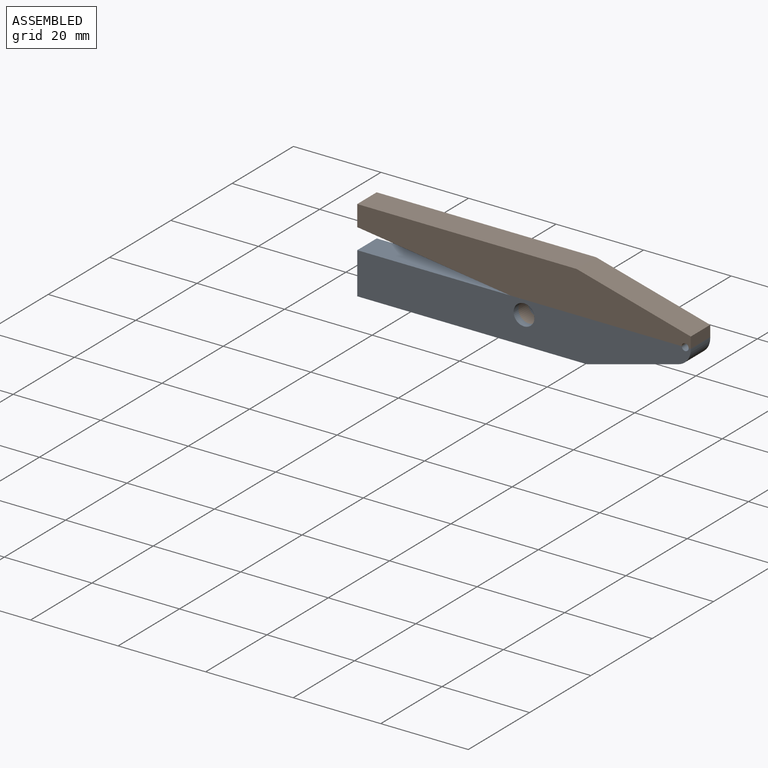
[diagram: assembled view]
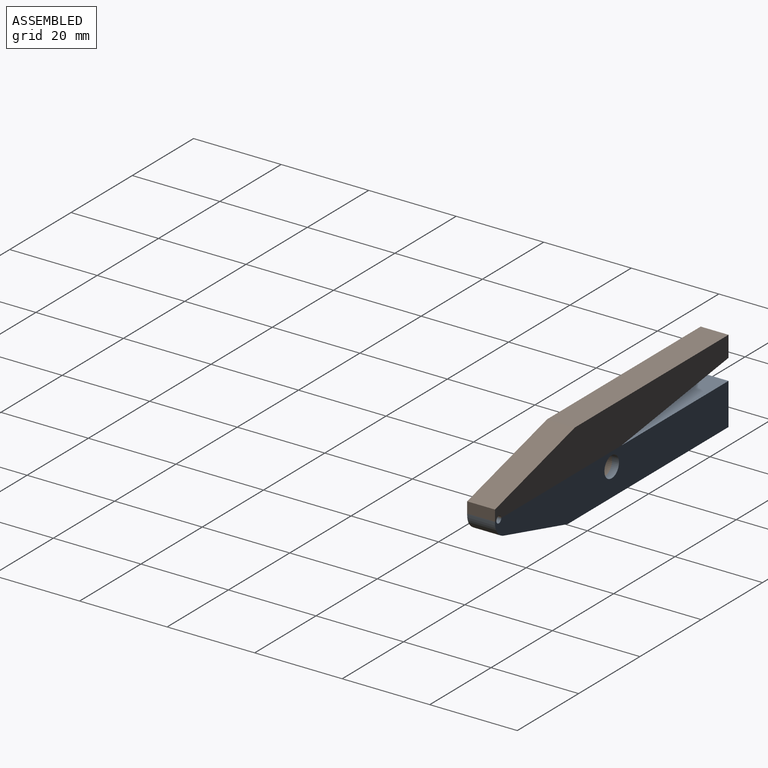
[diagram: assembled view, second angle]
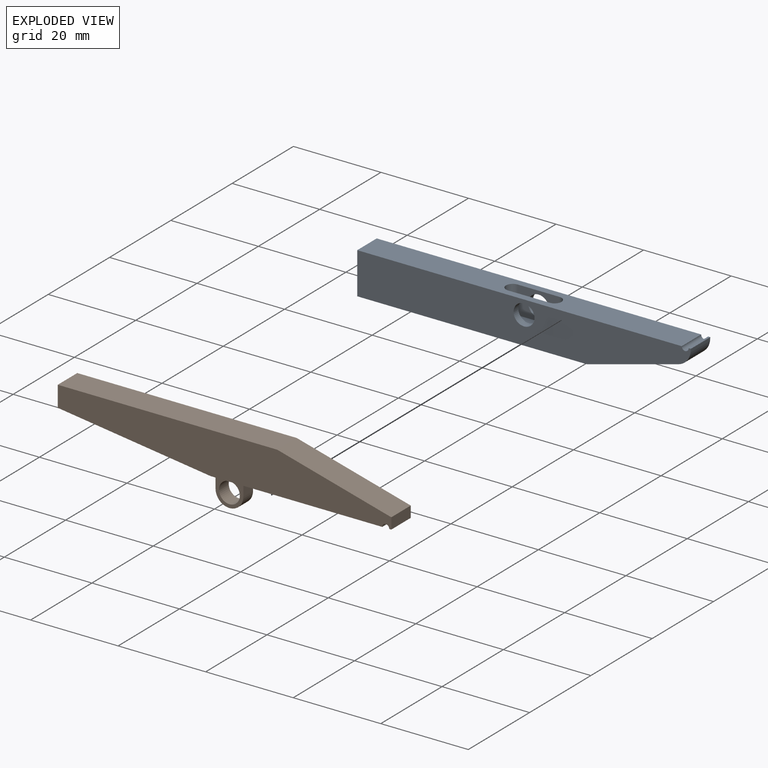
[diagram: exploded view]
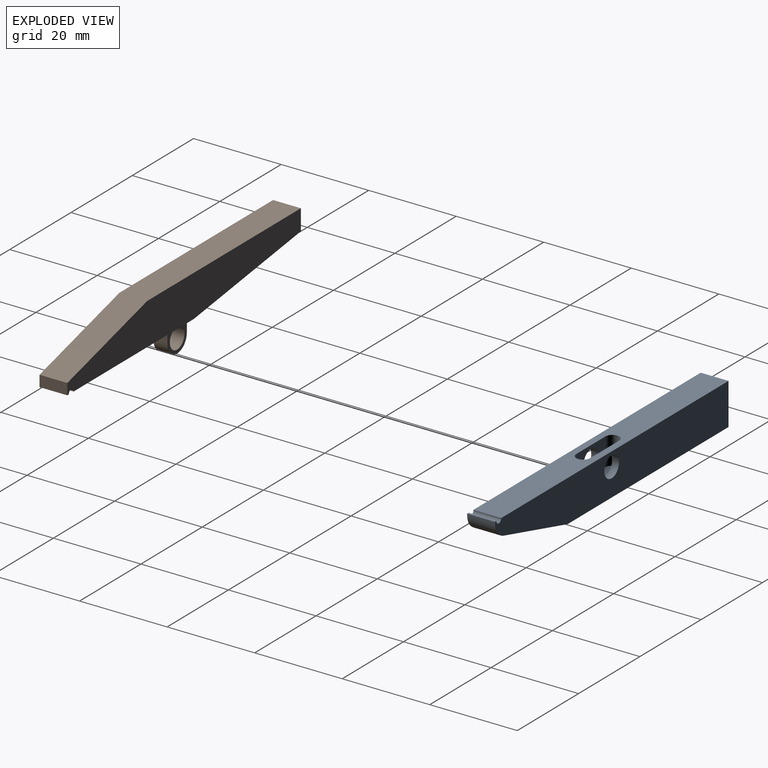
[diagram: exploded view, second angle]
ASSEMBLY  parts=2 mates=2
PART A: 17 faces, bbox 76.2x6.4x9.5 mm
  f0: cylinder r=2.38mm len=4.76mm, axis (0,1,0), area 23.8mm2, adj f9,f14
  f1: plane 6.35x0.25mm, normal (1,0,0), area 1.6mm2, adj f2,f9,f10,f16
  f2: plane 6.35x0.48mm, normal (0,0,1), area 3mm2, adj f1,f3,f9,f10
  f3: cylinder r=0.79mm len=6.35mm, axis (0,1,0), area 15.8mm2, adj f2,f4,f9,f10
  f4: plane 74.14x6.35mm, normal (0,0,1), area 432.6mm2, adj f3,f5,f9,f10,f11,f12,f13,f14
  f5: plane 9.53x6.35mm, normal (-1,0,0), area 60.5mm2, adj f4,f6,f9,f10
  f6: plane 52.5x6.35mm, normal (0,0,-1), area 333.4mm2, adj f5,f8,f9,f10
  f7: cylinder r=2.38mm len=4.76mm, axis (0,1,0), area 23.8mm2, adj f10,f12
  f8: plane 20.87x6.35mm, normal (0.26,0,-0.97), area 137.2mm2, adj f6,f9,f10,f16
  f9: plane 76.2x9.53mm, normal (0,-1,0), area 630.1mm2, adj f0,f1,f2,f3,f4,f5,f6,f8
  f10: plane 76.2x9.53mm, normal (0,1,0), area 630.1mm2, adj f1,f2,f3,f4,f5,f6,f7,f8
  f11: cylinder r=1.59mm len=6.35mm, axis (0,0,1), area 31.7mm2, adj f4,f12,f14,f15
  f12: plane 9.53x6.35mm, normal (0,-1,0), area 42.7mm2, adj f4,f7,f11,f13,f15
  f13: cylinder r=1.59mm len=6.35mm, axis (0,0,1), area 31.7mm2, adj f4,f12,f14,f15
  f14: plane 9.53x6.35mm, normal (0,1,0), area 42.7mm2, adj f0,f4,f11,f13,f15
  f15: plane 12.7x3.18mm, normal (0,0,1), area 38.2mm2, adj f11,f12,f13,f14
  f16: cylinder r=3.81mm len=6.35mm, axis (0,-1,0), area 31.7mm2, adj f1,f8,f9,f10
PART B: 16 faces, bbox 76.2x6.4x15.9 mm
  f0: plane 3.18x3.18mm, normal (-1,0,0), area 10.1mm2, adj f2,f11,f13,f14
  f1: plane 3.18x3.18mm, normal (1,0,0), area 10.1mm2, adj f2,f4,f13,f14
  f2: cylinder r=3.17mm len=6.35mm, axis (0,1,0), area 31.7mm2, adj f0,f1,f13,f14
  f3: plane 76.2x9.53mm, normal (0,-1,0), area 550.6mm2, adj f4,f5,f6,f7,f8,f9,f10,f11
  f4: plane 39.21x6.35mm, normal (0,0,-1), area 228.8mm2, adj f1,f3,f5,f11,f12,f13,f14
  f5: cylinder r=0.79mm len=6.35mm, axis (0,1,0), area 15.8mm2, adj f3,f4,f6,f12
  f6: plane 6.35x0.48mm, normal (0,0,-1), area 3mm2, adj f3,f5,f7,f12
  f7: plane 6.35x2.54mm, normal (1,0,0), area 16.1mm2, adj f3,f6,f8,f12
  f8: plane 26.07x6.99mm, normal (0.26,0,0.97), area 171.4mm2, adj f3,f7,f9,f12
  f9: plane 50.13x6.35mm, normal (0,0,1), area 318.3mm2, adj f3,f8,f10,f12
  f10: plane 6.35x4.76mm, normal (-1,0,0), area 30.2mm2, adj f3,f9,f11,f12
  f11: plane 34.93x6.35mm, normal (-0.14,0,-0.99), area 223.8mm2, adj f0,f3,f4,f10,f12
  f12: plane 76.2x9.53mm, normal (0,1,0), area 550.6mm2, adj f4,f5,f6,f7,f8,f9,f10,f11
  f13: plane 6.35x6.35mm, normal (0,1,0), area 18.2mm2, adj f0,f1,f2,f4,f15
  f14: plane 6.35x6.35mm, normal (0,-1,0), area 18.2mm2, adj f0,f1,f2,f4,f15
  f15: cylinder r=2.38mm len=4.76mm, axis (0,1,0), area 47.5mm2, adj f13,f14
PLACE A t=(7.42,-3.25,19.61)mm
PLACE B t=(7.42,-3.25,29.14)mm
MATE cylindrical A.f0 <-> B.f2  axis (0,1,0) through (7.42,-8.01,21.2)mm
MATE parallel B.f3 <-> A.f9  axis (0,-1,0) through (6.48,-9.6,29.22)mm
